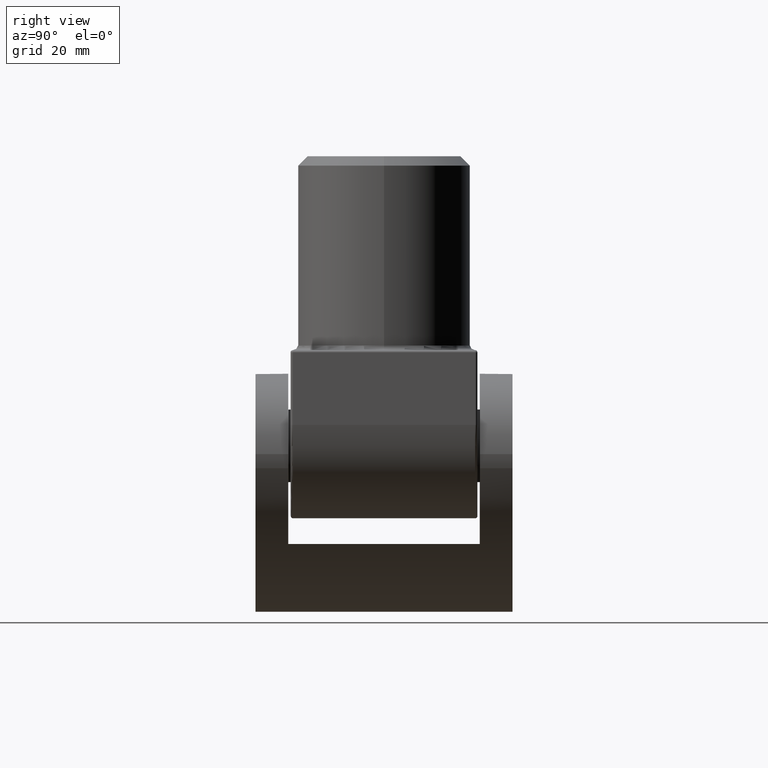
[diagram: clean part render]
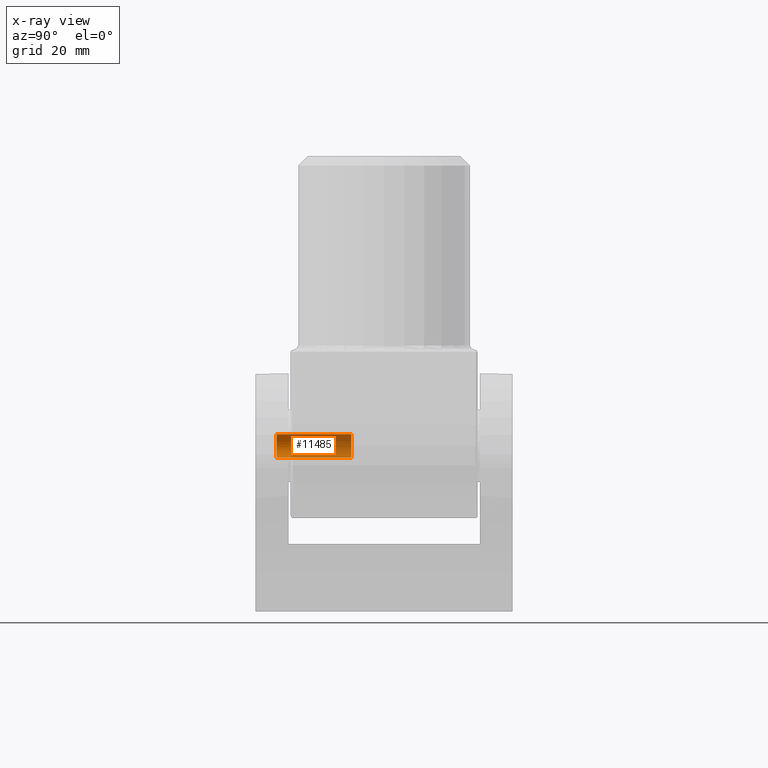
[diagram: x-ray — body ghosted, one internal face saturated and labeled with its STEP entity id]
A machine part, right view, then the same camera in x-ray: the body is ghosted and one INTERNAL B-rep face — a face not visible from any outside direction — is saturated and labeled: STEP entity #11485.
In plain terms, the highlighted cylindrical surface (edge-blend (fillet) strip) has radius 2.5 mm, axis along (-0, -1, -0).
Its self-contained STEP definition (entity closure, byte-faithful):
#30 = CIRCLE ( 'NONE', #8409, 2.499999999999992006 ) ;
#856 = VERTEX_POINT ( 'NONE', #4958 ) ;
#1973 = AXIS2_PLACEMENT_3D ( 'NONE', #14293, #4806, #19209 ) ;
#2892 = ORIENTED_EDGE ( 'NONE', *, *, #8681, .T. ) ;
#3332 = EDGE_CURVE ( 'NONE', #856, #8704, #10461, .T. ) ;
#4806 = DIRECTION ( 'NONE',  ( -0.000000000000000000, -1.000000000000000000, -0.000000000000000000 ) ) ;
#4939 = DIRECTION ( 'NONE',  ( -0.000000000000000000, -1.000000000000000000, -0.000000000000000000 ) ) ;
#4958 = CARTESIAN_POINT ( 'NONE',  ( 0.000000000000000000, -6.999999999999999112, -22.99999999999999645 ) ) ;
#6046 = DIRECTION ( 'NONE',  ( 0.000000000000000000, -1.000000000000000000, 0.000000000000000000 ) ) ;
#6932 = CARTESIAN_POINT ( 'NONE',  ( 3.061616997868377718E-16, -6.999999999999999112, -18.00000000000000711 ) ) ;
#7250 = CARTESIAN_POINT ( 'NONE',  ( 0.000000000000000000, -23.00000000000000711, -22.99999999999999289 ) ) ;
#8228 = VECTOR ( 'NONE', #4939, 1000.000000000000000 ) ;
#8409 = AXIS2_PLACEMENT_3D ( 'NONE', #12360, #6046, #17098 ) ;
#8681 = EDGE_CURVE ( 'NONE', #10421, #8704, #30, .T. ) ;
#8704 = VERTEX_POINT ( 'NONE', #7250 ) ;
#8821 = EDGE_CURVE ( 'NONE', #16147, #856, #18544, .T. ) ;
#10421 = VERTEX_POINT ( 'NONE', #15310 ) ;
#10461 = LINE ( 'NONE', #15948, #8228 ) ;
#10740 = DIRECTION ( 'NONE',  ( -0.000000000000000000, -1.000000000000000000, -0.000000000000000000 ) ) ;
#11485 = ADVANCED_FACE ( 'NONE', ( #12866 ), #15856, .F. ) ;
#12360 = CARTESIAN_POINT ( 'NONE',  ( 0.000000000000000000, -23.00000000000000711, -20.50000000000000000 ) ) ;
#12502 = ORIENTED_EDGE ( 'NONE', *, *, #3332, .F. ) ;
#12642 = LINE ( 'NONE', #13494, #13661 ) ;
#12866 = FACE_OUTER_BOUND ( 'NONE', #16662, .T. ) ;
#13494 = CARTESIAN_POINT ( 'NONE',  ( 3.061616997868373773E-16, -23.50000000000000000, -18.00000000000001066 ) ) ;
#13661 = VECTOR ( 'NONE', #16830, 1000.000000000000000 ) ;
#14072 = AXIS2_PLACEMENT_3D ( 'NONE', #14247, #10740, #15584 ) ;
#14247 = CARTESIAN_POINT ( 'NONE',  ( 0.000000000000000000, -6.999999999999999112, -20.50000000000000000 ) ) ;
#14293 = CARTESIAN_POINT ( 'NONE',  ( 0.000000000000000000, -23.50000000000000000, -20.50000000000000000 ) ) ;
#15310 = CARTESIAN_POINT ( 'NONE',  ( 3.061616997868375253E-16, -23.00000000000000711, -18.00000000000001066 ) ) ;
#15584 = DIRECTION ( 'NONE',  ( 0.000000000000000000, 0.000000000000000000, -1.000000000000000000 ) ) ;
#15641 = ORIENTED_EDGE ( 'NONE', *, *, #18882, .T. ) ;
#15856 = CYLINDRICAL_SURFACE ( 'NONE', #1973, 2.499999999999992006 ) ;
#15948 = CARTESIAN_POINT ( 'NONE',  ( 0.000000000000000000, -23.50000000000000000, -22.99999999999999289 ) ) ;
#16147 = VERTEX_POINT ( 'NONE', #6932 ) ;
#16662 = EDGE_LOOP ( 'NONE', ( #18371, #15641, #2892, #12502 ) ) ;
#16830 = DIRECTION ( 'NONE',  ( -0.000000000000000000, -1.000000000000000000, -0.000000000000000000 ) ) ;
#17098 = DIRECTION ( 'NONE',  ( 0.000000000000000000, 0.000000000000000000, 1.000000000000000000 ) ) ;
#18371 = ORIENTED_EDGE ( 'NONE', *, *, #8821, .F. ) ;
#18544 = CIRCLE ( 'NONE', #14072, 2.499999999999995115 ) ;
#18882 = EDGE_CURVE ( 'NONE', #16147, #10421, #12642, .T. ) ;
#19209 = DIRECTION ( 'NONE',  ( 0.000000000000000000, 0.000000000000000000, -1.000000000000000000 ) ) ;